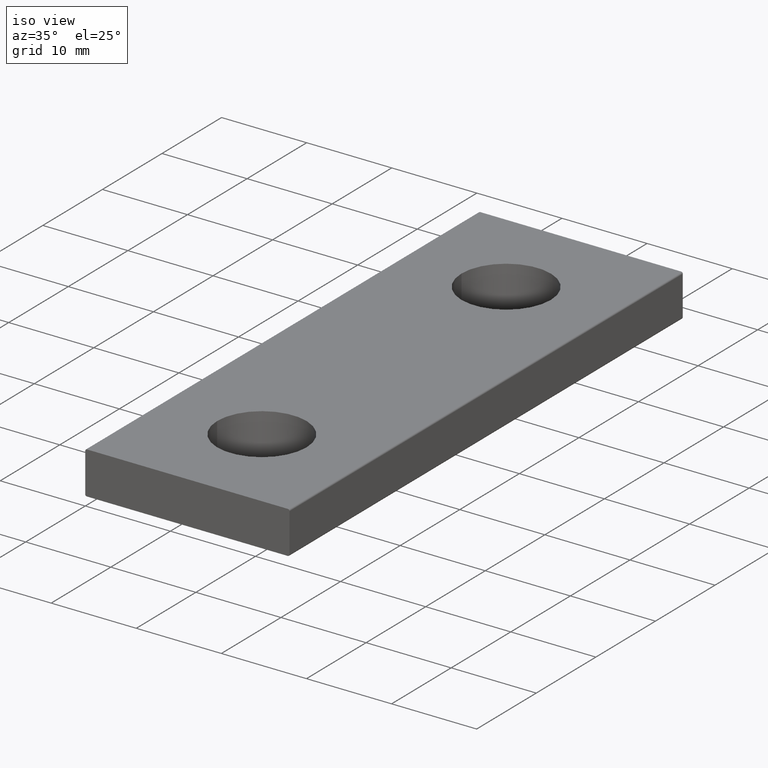
[diagram: clean part render]
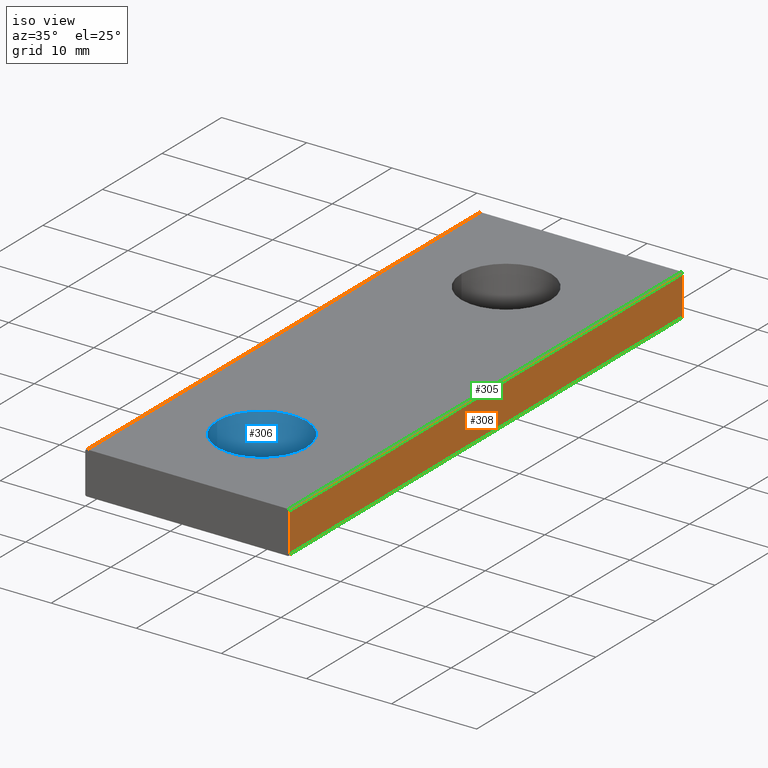
[diagram: same view with three faces highlighted in distinct colors, each labeled with its STEP entity id]
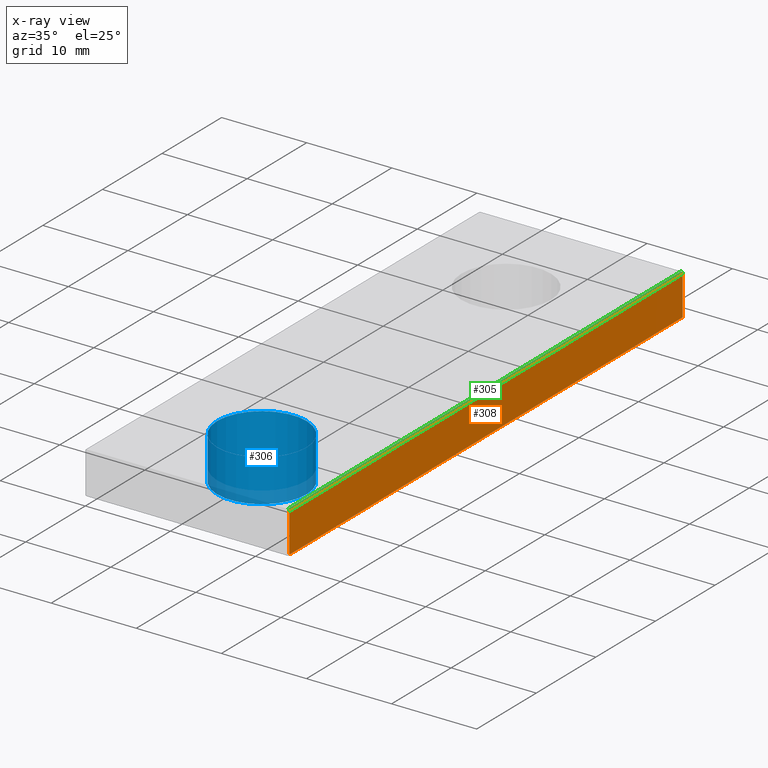
[diagram: x-ray of the same camera — body ghosted, the three highlighted faces saturated]
A machine part, iso view with three faces highlighted in distinct colors.
The next image is the same camera in x-ray (body ghosted, the three faces saturated) — at least one of them is partly hidden behind the body in this view.
Their STEP definitions:

[orange] entity #308 — the highlighted planar face has unit normal (1, -0, 0).
#21=PLANE('',#335);
#26=LINE('',#414,#42);
#33=LINE('',#445,#49);
#34=LINE('',#452,#50);
#38=LINE('',#457,#54);
#42=VECTOR('',#349,1000.);
#49=VECTOR('',#376,1000.);
#50=VECTOR('',#385,1000.);
#54=VECTOR('',#391,1000.);
#84=ORIENTED_EDGE('',*,*,#136,.T.);
#85=ORIENTED_EDGE('',*,*,#115,.F.);
#86=ORIENTED_EDGE('',*,*,#132,.F.);
#87=ORIENTED_EDGE('',*,*,#129,.T.);
#115=EDGE_CURVE('',#142,#144,#26,.T.);
#129=EDGE_CURVE('',#155,#157,#33,.T.);
#132=EDGE_CURVE('',#155,#142,#34,.T.);
#136=EDGE_CURVE('',#157,#144,#38,.T.);
#142=VERTEX_POINT('',#412);
#144=VERTEX_POINT('',#415);
#155=VERTEX_POINT('',#440);
#157=VERTEX_POINT('',#444);
#181=EDGE_LOOP('',(#84,#85,#86,#87));
#199=FACE_BOUND('',#181,.T.);
#308=ADVANCED_FACE('',(#199),#21,.T.);
#335=AXIS2_PLACEMENT_3D('',#456,#389,#390);
#349=DIRECTION('',(-1.31371731030452E-46,-1.,-1.49186218934005E-16));
#376=DIRECTION('',(-1.31371731030452E-46,-1.,-1.49186218934005E-16));
#385=DIRECTION('',(1.49186218934005E-16,1.49186218934005E-16,-1.));
#389=DIRECTION('',(1.,-2.2256527919825E-32,1.49186218934005E-16));
#390=DIRECTION('',(0.,1.,1.49186218934005E-16));
#391=DIRECTION('',(1.49186218934005E-16,1.49186218934005E-16,-1.));
#412=CARTESIAN_POINT('',(24.,66.,0.199999999999746));
#414=CARTESIAN_POINT('',(24.,7.16093850883224E-16,0.199999999999736));
#415=CARTESIAN_POINT('',(24.,7.16093850883224E-16,0.199999999999735));
#440=CARTESIAN_POINT('',(24.,66.,4.79999999999974));
#444=CARTESIAN_POINT('',(24.,2.98372437868011E-17,4.79999999999974));
#445=CARTESIAN_POINT('',(24.,2.98372437868011E-17,4.79999999999974));
#452=CARTESIAN_POINT('',(24.,66.,4.99999999999975));
#456=CARTESIAN_POINT('',(24.,0.,4.99999999999974));
#457=CARTESIAN_POINT('',(24.,0.,4.99999999999974));

[blue] entity #306 — the highlighted cylindrical surface (bore or boss wall) has radius 5.25 mm, axis along (0, 0, -1).
#74=ORIENTED_EDGE('',*,*,#130,.F.);
#75=ORIENTED_EDGE('',*,*,#131,.T.);
#130=EDGE_CURVE('',#158,#158,#170,.T.);
#131=EDGE_CURVE('',#159,#159,#171,.T.);
#158=VERTEX_POINT('',#448);
#159=VERTEX_POINT('',#450);
#170=CIRCLE('',#332,5.25);
#171=CIRCLE('',#333,5.25);
#178=EDGE_LOOP('',(#74));
#179=EDGE_LOOP('',(#75));
#196=FACE_BOUND('',#178,.T.);
#197=FACE_BOUND('',#179,.T.);
#214=CYLINDRICAL_SURFACE('',#331,5.25);
#306=ADVANCED_FACE('',(#196,#197),#214,.F.);
#331=AXIS2_PLACEMENT_3D('',#446,#377,#378);
#332=AXIS2_PLACEMENT_3D('',#447,#379,#380);
#333=AXIS2_PLACEMENT_3D('',#449,#381,#382);
#377=DIRECTION('',(1.49186218934005E-16,1.49186218934005E-16,-1.));
#378=DIRECTION('',(-1.,2.2256527919825E-32,-1.49186218934005E-16));
#379=DIRECTION('',(1.49186218934005E-16,1.49186218934005E-16,-1.));
#380=DIRECTION('',(-1.,2.2256527919825E-32,-1.49186218934005E-16));
#381=DIRECTION('',(1.49186218934005E-16,1.49186218934005E-16,-1.));
#382=DIRECTION('',(-1.,2.2256527919825E-32,-1.49186218934005E-16));
#446=CARTESIAN_POINT('',(12.,12.5,4.99999999999973));
#447=CARTESIAN_POINT('',(12.,12.5,4.99999999999973));
#448=CARTESIAN_POINT('',(6.75,12.5,4.99999999999973));
#449=CARTESIAN_POINT('',(12.,12.5,-2.67147415300428E-13));
#450=CARTESIAN_POINT('',(6.75,12.5,-2.67930642949832E-13));

[green] entity #305 — the highlighted cylindrical surface (edge-blend (fillet) strip) has radius 0.2 mm, axis along (0, 1, 0).
#32=LINE('',#441,#48);
#33=LINE('',#445,#49);
#48=VECTOR('',#373,1000.);
#49=VECTOR('',#376,1000.);
#70=ORIENTED_EDGE('',*,*,#126,.F.);
#71=ORIENTED_EDGE('',*,*,#127,.T.);
#72=ORIENTED_EDGE('',*,*,#128,.F.);
#73=ORIENTED_EDGE('',*,*,#129,.F.);
#126=EDGE_CURVE('',#154,#155,#168,.T.);
#127=EDGE_CURVE('',#154,#156,#32,.T.);
#128=EDGE_CURVE('',#157,#156,#169,.T.);
#129=EDGE_CURVE('',#155,#157,#33,.T.);
#154=VERTEX_POINT('',#439);
#155=VERTEX_POINT('',#440);
#156=VERTEX_POINT('',#442);
#157=VERTEX_POINT('',#444);
#168=CIRCLE('',#329,0.2);
#169=CIRCLE('',#330,0.2);
#177=EDGE_LOOP('',(#70,#71,#72,#73));
#195=FACE_BOUND('',#177,.T.);
#213=CYLINDRICAL_SURFACE('',#328,0.2);
#305=ADVANCED_FACE('',(#195),#213,.T.);
#328=AXIS2_PLACEMENT_3D('',#437,#369,#370);
#329=AXIS2_PLACEMENT_3D('',#438,#371,#372);
#330=AXIS2_PLACEMENT_3D('',#443,#374,#375);
#369=DIRECTION('',(1.31371731030452E-46,1.,1.49186218934005E-16));
#370=DIRECTION('',(0.,-1.49186218934005E-16,1.));
#371=DIRECTION('',(0.,1.,1.49186218934005E-16));
#372=DIRECTION('',(0.,-1.49186218934005E-16,1.));
#373=DIRECTION('',(-1.31371731030452E-46,-1.,-1.49186218934005E-16));
#374=DIRECTION('',(0.,-1.,-1.49186218934005E-16));
#375=DIRECTION('',(0.,1.49186218934005E-16,-1.));
#376=DIRECTION('',(-1.31371731030452E-46,-1.,-1.49186218934005E-16));
#437=CARTESIAN_POINT('',(23.8,2.98372437868011E-17,4.79999999999974));
#438=CARTESIAN_POINT('',(23.8,66.,4.79999999999974));
#439=CARTESIAN_POINT('',(23.8,66.,4.99999999999975));
#440=CARTESIAN_POINT('',(24.,66.,4.79999999999974));
#441=CARTESIAN_POINT('',(23.8,66.,4.99999999999974));
#442=CARTESIAN_POINT('',(23.8,-5.42836715964532E-31,4.99999999999973));
#443=CARTESIAN_POINT('',(23.8,2.98372437868003E-17,4.79999999999974));
#444=CARTESIAN_POINT('',(24.,2.98372437868011E-17,4.79999999999974));
#445=CARTESIAN_POINT('',(24.,2.98372437868011E-17,4.79999999999974));